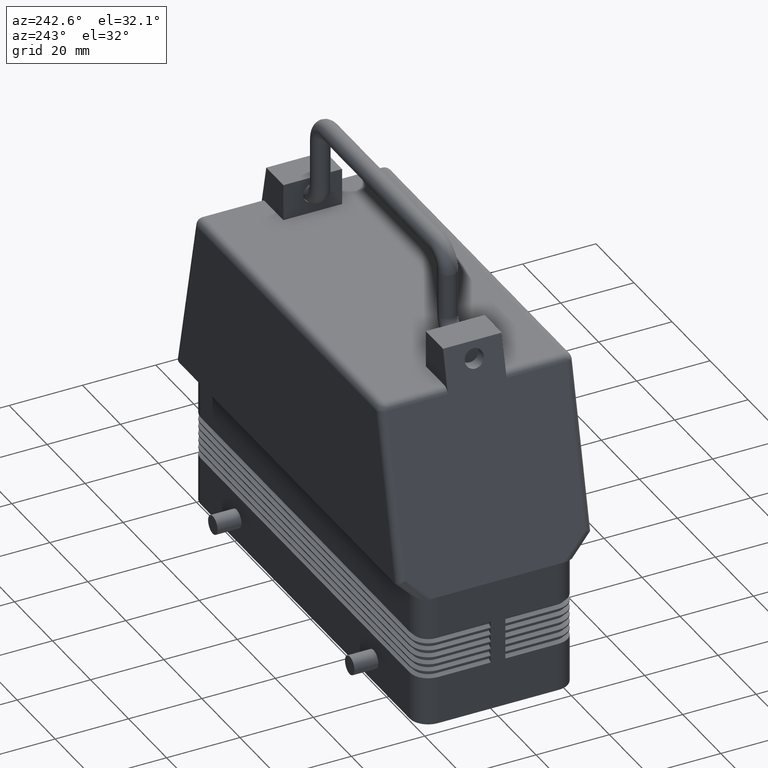
[diagram: clean part render]
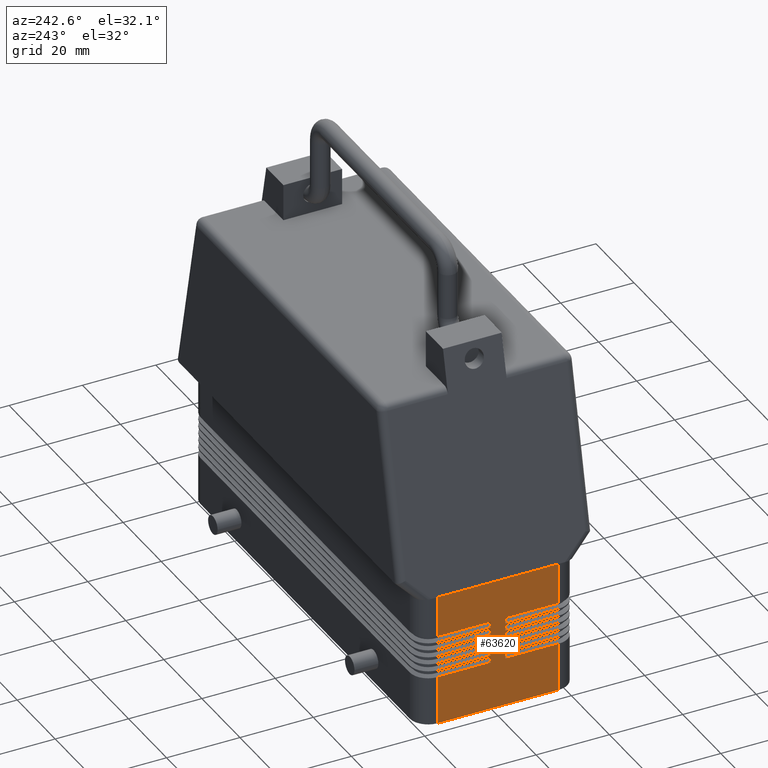
[diagram: same view with one face highlighted and labeled with its STEP entity id]
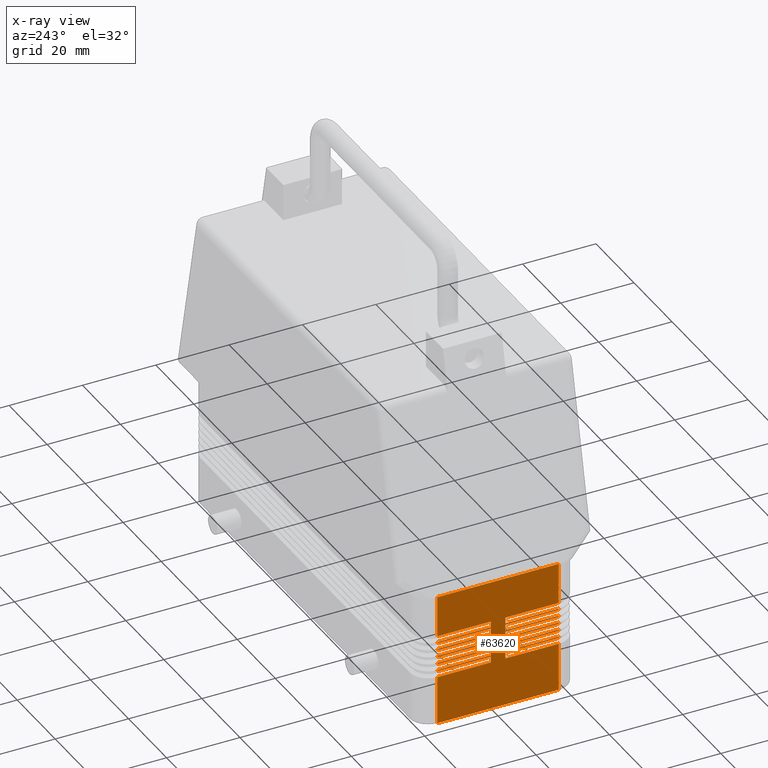
[diagram: x-ray of the same camera — body ghosted, the highlighted face saturated]
A machine part, auxiliary view. The second image highlights one B-rep face of the part: STEP entity #63620.
The next image is the same camera in x-ray: the body ghosted, the highlighted face saturated — about 0% of this face is hidden behind the body in this view.
In plain terms, the highlighted planar face has unit normal (-1, 0, 0).
Its self-contained STEP definition (entity closure, byte-faithful):
#5150=CARTESIAN_POINT('',(-60.,16.5,2.220446E-14));
#5160=DIRECTION('',(0.,0.,1.));
#5170=VECTOR('',#5160,13.1726497308104);
#5180=LINE('',#5150,#5170);
#5190=CARTESIAN_POINT('',(-60.,16.5,2.220446E-14));
#5200=VERTEX_POINT('',#5190);
#5210=CARTESIAN_POINT('',(-60.,16.5,13.1726497308104));
#5220=VERTEX_POINT('',#5210);
#5230=EDGE_CURVE('',#5200,#5220,#5180,.T.);
#22430=CARTESIAN_POINT('',(-60.,16.5,14.8273502691896));
#22440=DIRECTION('',(0.,0.,1.));
#22450=VECTOR('',#22440,0.345299461620751);
#22460=LINE('',#22430,#22450);
#22470=CARTESIAN_POINT('',(-60.,16.5,14.8273502691896));
#22480=VERTEX_POINT('',#22470);
#22490=CARTESIAN_POINT('',(-60.,16.5,15.1726497308104));
#22500=VERTEX_POINT('',#22490);
#22510=EDGE_CURVE('',#22480,#22500,#22460,.T.);
#23410=CARTESIAN_POINT('',(-60.,16.5,16.8273502691896));
#23420=DIRECTION('',(0.,0.,1.));
#23430=VECTOR('',#23420,0.345299461620755);
#23440=LINE('',#23410,#23430);
#23450=CARTESIAN_POINT('',(-60.,16.5,16.8273502691896));
#23460=VERTEX_POINT('',#23450);
#23470=CARTESIAN_POINT('',(-60.,16.5,17.1726497308104));
#23480=VERTEX_POINT('',#23470);
#23490=EDGE_CURVE('',#23460,#23480,#23440,.T.);
#24390=CARTESIAN_POINT('',(-60.,16.5,18.8273502691896));
#24400=DIRECTION('',(0.,0.,1.));
#24410=VECTOR('',#24400,0.345299461620755);
#24420=LINE('',#24390,#24410);
#24430=CARTESIAN_POINT('',(-60.,16.5,18.8273502691896));
#24440=VERTEX_POINT('',#24430);
#24450=CARTESIAN_POINT('',(-60.,16.5,19.1726497308104));
#24460=VERTEX_POINT('',#24450);
#24470=EDGE_CURVE('',#24440,#24460,#24420,.T.);
#25370=CARTESIAN_POINT('',(-60.,16.5,20.8273502691896));
#25380=DIRECTION('',(0.,0.,1.));
#25390=VECTOR('',#25380,0.345299461620751);
#25400=LINE('',#25370,#25390);
#25410=CARTESIAN_POINT('',(-60.,16.5,20.8273502691896));
#25420=VERTEX_POINT('',#25410);
#25430=CARTESIAN_POINT('',(-60.,16.5,21.1726497308104));
#25440=VERTEX_POINT('',#25430);
#25450=EDGE_CURVE('',#25420,#25440,#25400,.T.);
#26350=CARTESIAN_POINT('',(-60.,16.5,22.8273502691896));
#26360=DIRECTION('',(0.,0.,1.));
#26370=VECTOR('',#26360,0.345299461620755);
#26380=LINE('',#26350,#26370);
#26390=CARTESIAN_POINT('',(-60.,16.5,22.8273502691896));
#26400=VERTEX_POINT('',#26390);
#26410=CARTESIAN_POINT('',(-60.,16.5,23.1726497308104));
#26420=VERTEX_POINT('',#26410);
#26430=EDGE_CURVE('',#26400,#26420,#26380,.T.);
#27330=CARTESIAN_POINT('',(-60.,16.5,24.8273502691896));
#27340=DIRECTION('',(0.,0.,1.));
#27350=VECTOR('',#27340,11.1726497308104);
#27360=LINE('',#27330,#27350);
#27370=CARTESIAN_POINT('',(-60.,16.5,24.8273502691896));
#27380=VERTEX_POINT('',#27370);
#27390=CARTESIAN_POINT('',(-60.,16.5,36.));
#27400=VERTEX_POINT('',#27390);
#27410=EDGE_CURVE('',#27380,#27400,#27360,.T.);
#28310=CARTESIAN_POINT('',(-60.,-16.5,13.1726497308104));
#28320=DIRECTION('',(0.,0.,-1.));
#28330=VECTOR('',#28320,13.1726497308104);
#28340=LINE('',#28310,#28330);
#28350=CARTESIAN_POINT('',(-60.,-16.5,13.1726497308104));
#28360=VERTEX_POINT('',#28350);
#28370=CARTESIAN_POINT('',(-60.,-16.5,2.220446E-14));
#28380=VERTEX_POINT('',#28370);
#28390=EDGE_CURVE('',#28360,#28380,#28340,.T.);
#29290=CARTESIAN_POINT('',(-60.,-16.5,15.1726497308104));
#29300=DIRECTION('',(0.,0.,-1.));
#29310=VECTOR('',#29300,0.345299461620753);
#29320=LINE('',#29290,#29310);
#29330=CARTESIAN_POINT('',(-60.,-16.5,15.1726497308104));
#29340=VERTEX_POINT('',#29330);
#29350=CARTESIAN_POINT('',(-60.,-16.5,14.8273502691896));
#29360=VERTEX_POINT('',#29350);
#29370=EDGE_CURVE('',#29340,#29360,#29320,.T.);
#30270=CARTESIAN_POINT('',(-60.,-16.5,17.1726497308104));
#30280=DIRECTION('',(0.,0.,-1.));
#30290=VECTOR('',#30280,0.345299461620765);
#30300=LINE('',#30270,#30290);
#30310=CARTESIAN_POINT('',(-60.,-16.5,17.1726497308104));
#30320=VERTEX_POINT('',#30310);
#30330=CARTESIAN_POINT('',(-60.,-16.5,16.8273502691896));
#30340=VERTEX_POINT('',#30330);
#30350=EDGE_CURVE('',#30320,#30340,#30300,.T.);
#31250=CARTESIAN_POINT('',(-60.,-16.5,19.1726497308104));
#31260=DIRECTION('',(0.,0.,-1.));
#31270=VECTOR('',#31260,0.345299461620765);
#31280=LINE('',#31250,#31270);
#31290=CARTESIAN_POINT('',(-60.,-16.5,19.1726497308104));
#31300=VERTEX_POINT('',#31290);
#31310=CARTESIAN_POINT('',(-60.,-16.5,18.8273502691896));
#31320=VERTEX_POINT('',#31310);
#31330=EDGE_CURVE('',#31300,#31320,#31280,.T.);
#32230=CARTESIAN_POINT('',(-60.,-16.5,21.1726497308104));
#32240=DIRECTION('',(0.,0.,-1.));
#32250=VECTOR('',#32240,0.345299461620758);
#32260=LINE('',#32230,#32250);
#32270=CARTESIAN_POINT('',(-60.,-16.5,21.1726497308104));
#32280=VERTEX_POINT('',#32270);
#32290=CARTESIAN_POINT('',(-60.,-16.5,20.8273502691896));
#32300=VERTEX_POINT('',#32290);
#32310=EDGE_CURVE('',#32280,#32300,#32260,.T.);
#33210=CARTESIAN_POINT('',(-60.,-16.5,23.1726497308104));
#33220=DIRECTION('',(0.,0.,-1.));
#33230=VECTOR('',#33220,0.345299461620758);
#33240=LINE('',#33210,#33230);
#33250=CARTESIAN_POINT('',(-60.,-16.5,23.1726497308104));
#33260=VERTEX_POINT('',#33250);
#33270=CARTESIAN_POINT('',(-60.,-16.5,22.8273502691896));
#33280=VERTEX_POINT('',#33270);
#33290=EDGE_CURVE('',#33260,#33280,#33240,.T.);
#33700=CARTESIAN_POINT('',(-60.,-16.5,36.));
#33710=DIRECTION('',(0.,0.,-1.));
#33720=VECTOR('',#33710,11.1726497308104);
#33730=LINE('',#33700,#33720);
#33740=CARTESIAN_POINT('',(-60.,-16.5,36.));
#33750=VERTEX_POINT('',#33740);
#33760=CARTESIAN_POINT('',(-60.,-16.5,24.8273502691896));
#33770=VERTEX_POINT('',#33760);
#33780=EDGE_CURVE('',#33750,#33770,#33730,.T.);
#55600=CARTESIAN_POINT('',(-60.,-2.,23.1726497308104));
#55610=VERTEX_POINT('',#55600);
#55710=CARTESIAN_POINT('',(-60.,-16.5,23.1726497308104));
#55720=DIRECTION('',(0.,1.,0.));
#55730=VECTOR('',#55720,14.5);
#55740=LINE('',#55710,#55730);
#55750=EDGE_CURVE('',#33260,#55610,#55740,.T.);
#55960=CARTESIAN_POINT('',(-60.,-2.,24.8273502691896));
#55970=VERTEX_POINT('',#55960);
#56090=CARTESIAN_POINT('',(-60.,-2.,23.1726497308104));
#56100=DIRECTION('',(0.,0.,1.));
#56110=VECTOR('',#56100,1.65470053837924);
#56120=LINE('',#56090,#56110);
#56130=EDGE_CURVE('',#55610,#55970,#56120,.T.);
#56450=CARTESIAN_POINT('',(-60.,-2.,24.8273502691896));
#56460=DIRECTION('',(0.,-1.,0.));
#56470=VECTOR('',#56460,14.5);
#56480=LINE('',#56450,#56470);
#56490=EDGE_CURVE('',#55970,#33770,#56480,.T.);
#60840=CARTESIAN_POINT('',(-60.,0.,36.));
#60850=DIRECTION('',(-1.,0.,0.));
#60860=DIRECTION('',(0.,0.,1.));
#60870=AXIS2_PLACEMENT_3D('',#60840,#60850,#60860);
#60880=PLANE('',#60870);
#60890=ORIENTED_EDGE('',*,*,#33290,.F.);
#60900=CARTESIAN_POINT('',(-60.,-2.,22.8273502691896));
#60910=DIRECTION('',(0.,-1.,0.));
#60920=VECTOR('',#60910,14.5);
#60930=LINE('',#60900,#60920);
#60940=CARTESIAN_POINT('',(-60.,-2.,22.8273502691896));
#60950=VERTEX_POINT('',#60940);
#60960=EDGE_CURVE('',#60950,#33280,#60930,.T.);
#60970=ORIENTED_EDGE('',*,*,#60960,.T.);
#60980=CARTESIAN_POINT('',(-60.,-2.,21.1726497308104));
#60990=DIRECTION('',(0.,0.,1.));
#61000=VECTOR('',#60990,1.65470053837924);
#61010=LINE('',#60980,#61000);
#61020=CARTESIAN_POINT('',(-60.,-2.,21.1726497308104));
#61030=VERTEX_POINT('',#61020);
#61040=EDGE_CURVE('',#61030,#60950,#61010,.T.);
#61050=ORIENTED_EDGE('',*,*,#61040,.T.);
#61060=CARTESIAN_POINT('',(-60.,-16.5,21.1726497308104));
#61070=DIRECTION('',(0.,1.,0.));
#61080=VECTOR('',#61070,14.5);
#61090=LINE('',#61060,#61080);
#61100=EDGE_CURVE('',#32280,#61030,#61090,.T.);
#61110=ORIENTED_EDGE('',*,*,#61100,.T.);
#61120=ORIENTED_EDGE('',*,*,#32310,.F.);
#61130=CARTESIAN_POINT('',(-60.,-2.,20.8273502691896));
#61140=DIRECTION('',(0.,-1.,0.));
#61150=VECTOR('',#61140,14.5);
#61160=LINE('',#61130,#61150);
#61170=CARTESIAN_POINT('',(-60.,-2.,20.8273502691896));
#61180=VERTEX_POINT('',#61170);
#61190=EDGE_CURVE('',#61180,#32300,#61160,.T.);
#61200=ORIENTED_EDGE('',*,*,#61190,.T.);
#61210=CARTESIAN_POINT('',(-60.,-2.,19.1726497308104));
#61220=DIRECTION('',(0.,0.,1.));
#61230=VECTOR('',#61220,1.65470053837924);
#61240=LINE('',#61210,#61230);
#61250=CARTESIAN_POINT('',(-60.,-2.,19.1726497308104));
#61260=VERTEX_POINT('',#61250);
#61270=EDGE_CURVE('',#61260,#61180,#61240,.T.);
#61280=ORIENTED_EDGE('',*,*,#61270,.T.);
#61290=CARTESIAN_POINT('',(-60.,-16.5,19.1726497308104));
#61300=DIRECTION('',(0.,1.,0.));
#61310=VECTOR('',#61300,14.5);
#61320=LINE('',#61290,#61310);
#61330=EDGE_CURVE('',#31300,#61260,#61320,.T.);
#61340=ORIENTED_EDGE('',*,*,#61330,.T.);
#61350=ORIENTED_EDGE('',*,*,#31330,.F.);
#61360=CARTESIAN_POINT('',(-60.,-2.,18.8273502691896));
#61370=DIRECTION('',(0.,-1.,0.));
#61380=VECTOR('',#61370,14.5);
#61390=LINE('',#61360,#61380);
#61400=CARTESIAN_POINT('',(-60.,-2.,18.8273502691896));
#61410=VERTEX_POINT('',#61400);
#61420=EDGE_CURVE('',#61410,#31320,#61390,.T.);
#61430=ORIENTED_EDGE('',*,*,#61420,.T.);
#61440=CARTESIAN_POINT('',(-60.,-2.,17.1726497308104));
#61450=DIRECTION('',(0.,0.,1.));
#61460=VECTOR('',#61450,1.65470053837924);
#61470=LINE('',#61440,#61460);
#61480=CARTESIAN_POINT('',(-60.,-2.,17.1726497308104));
#61490=VERTEX_POINT('',#61480);
#61500=EDGE_CURVE('',#61490,#61410,#61470,.T.);
#61510=ORIENTED_EDGE('',*,*,#61500,.T.);
#61520=CARTESIAN_POINT('',(-60.,-16.5,17.1726497308104));
#61530=DIRECTION('',(0.,1.,0.));
#61540=VECTOR('',#61530,14.5);
#61550=LINE('',#61520,#61540);
#61560=EDGE_CURVE('',#30320,#61490,#61550,.T.);
#61570=ORIENTED_EDGE('',*,*,#61560,.T.);
#61580=ORIENTED_EDGE('',*,*,#30350,.F.);
#61590=CARTESIAN_POINT('',(-60.,-2.,16.8273502691896));
#61600=DIRECTION('',(0.,-1.,0.));
#61610=VECTOR('',#61600,14.5);
#61620=LINE('',#61590,#61610);
#61630=CARTESIAN_POINT('',(-60.,-2.,16.8273502691896));
#61640=VERTEX_POINT('',#61630);
#61650=EDGE_CURVE('',#61640,#30340,#61620,.T.);
#61660=ORIENTED_EDGE('',*,*,#61650,.T.);
#61670=CARTESIAN_POINT('',(-60.,-2.,15.1726497308104));
#61680=DIRECTION('',(0.,0.,1.));
#61690=VECTOR('',#61680,1.65470053837924);
#61700=LINE('',#61670,#61690);
#61710=CARTESIAN_POINT('',(-60.,-2.,15.1726497308104));
#61720=VERTEX_POINT('',#61710);
#61730=EDGE_CURVE('',#61720,#61640,#61700,.T.);
#61740=ORIENTED_EDGE('',*,*,#61730,.T.);
#61750=CARTESIAN_POINT('',(-60.,-16.5,15.1726497308104));
#61760=DIRECTION('',(0.,1.,0.));
#61770=VECTOR('',#61760,14.5);
#61780=LINE('',#61750,#61770);
#61790=EDGE_CURVE('',#29340,#61720,#61780,.T.);
#61800=ORIENTED_EDGE('',*,*,#61790,.T.);
#61810=ORIENTED_EDGE('',*,*,#29370,.F.);
#61820=CARTESIAN_POINT('',(-60.,-2.,14.8273502691896));
#61830=DIRECTION('',(0.,-1.,0.));
#61840=VECTOR('',#61830,14.5);
#61850=LINE('',#61820,#61840);
#61860=CARTESIAN_POINT('',(-60.,-2.,14.8273502691896));
#61870=VERTEX_POINT('',#61860);
#61880=EDGE_CURVE('',#61870,#29360,#61850,.T.);
#61890=ORIENTED_EDGE('',*,*,#61880,.T.);
#61900=CARTESIAN_POINT('',(-60.,-2.,13.1726497308104));
#61910=DIRECTION('',(0.,0.,1.));
#61920=VECTOR('',#61910,1.65470053837924);
#61930=LINE('',#61900,#61920);
#61940=CARTESIAN_POINT('',(-60.,-2.,13.1726497308104));
#61950=VERTEX_POINT('',#61940);
#61960=EDGE_CURVE('',#61950,#61870,#61930,.T.);
#61970=ORIENTED_EDGE('',*,*,#61960,.T.);
#61980=CARTESIAN_POINT('',(-60.,-16.5,13.1726497308104));
#61990=DIRECTION('',(0.,1.,0.));
#62000=VECTOR('',#61990,14.5);
#62010=LINE('',#61980,#62000);
#62020=EDGE_CURVE('',#28360,#61950,#62010,.T.);
#62030=ORIENTED_EDGE('',*,*,#62020,.T.);
#62040=ORIENTED_EDGE('',*,*,#28390,.F.);
#62050=CARTESIAN_POINT('',(-60.,-16.5,2.220446E-14));
#62060=DIRECTION('',(0.,1.,0.));
#62070=VECTOR('',#62060,33.);
#62080=LINE('',#62050,#62070);
#62090=EDGE_CURVE('',#28380,#5200,#62080,.T.);
#62100=ORIENTED_EDGE('',*,*,#62090,.F.);
#62110=ORIENTED_EDGE('',*,*,#5230,.F.);
#62120=CARTESIAN_POINT('',(-60.,2.,13.1726497308104));
#62130=DIRECTION('',(0.,1.,0.));
#62140=VECTOR('',#62130,14.5);
#62150=LINE('',#62120,#62140);
#62160=CARTESIAN_POINT('',(-60.,2.,13.1726497308104));
#62170=VERTEX_POINT('',#62160);
#62180=EDGE_CURVE('',#62170,#5220,#62150,.T.);
#62190=ORIENTED_EDGE('',*,*,#62180,.T.);
#62200=CARTESIAN_POINT('',(-60.,2.,14.8273502691896));
#62210=DIRECTION('',(0.,0.,-1.));
#62220=VECTOR('',#62210,1.65470053837924);
#62230=LINE('',#62200,#62220);
#62240=CARTESIAN_POINT('',(-60.,2.,14.8273502691896));
#62250=VERTEX_POINT('',#62240);
#62260=EDGE_CURVE('',#62250,#62170,#62230,.T.);
#62270=ORIENTED_EDGE('',*,*,#62260,.T.);
#62280=CARTESIAN_POINT('',(-60.,16.5,14.8273502691896));
#62290=DIRECTION('',(0.,-1.,0.));
#62300=VECTOR('',#62290,14.5);
#62310=LINE('',#62280,#62300);
#62320=EDGE_CURVE('',#22480,#62250,#62310,.T.);
#62330=ORIENTED_EDGE('',*,*,#62320,.T.);
#62340=ORIENTED_EDGE('',*,*,#22510,.F.);
#62350=CARTESIAN_POINT('',(-60.,2.,15.1726497308104));
#62360=DIRECTION('',(0.,1.,0.));
#62370=VECTOR('',#62360,14.5);
#62380=LINE('',#62350,#62370);
#62390=CARTESIAN_POINT('',(-60.,2.,15.1726497308104));
#62400=VERTEX_POINT('',#62390);
#62410=EDGE_CURVE('',#62400,#22500,#62380,.T.);
#62420=ORIENTED_EDGE('',*,*,#62410,.T.);
#62430=CARTESIAN_POINT('',(-60.,2.,16.8273502691896));
#62440=DIRECTION('',(0.,0.,-1.));
#62450=VECTOR('',#62440,1.65470053837924);
#62460=LINE('',#62430,#62450);
#62470=CARTESIAN_POINT('',(-60.,2.,16.8273502691896));
#62480=VERTEX_POINT('',#62470);
#62490=EDGE_CURVE('',#62480,#62400,#62460,.T.);
#62500=ORIENTED_EDGE('',*,*,#62490,.T.);
#62510=CARTESIAN_POINT('',(-60.,16.5,16.8273502691896));
#62520=DIRECTION('',(0.,-1.,0.));
#62530=VECTOR('',#62520,14.5);
#62540=LINE('',#62510,#62530);
#62550=EDGE_CURVE('',#23460,#62480,#62540,.T.);
#62560=ORIENTED_EDGE('',*,*,#62550,.T.);
#62570=ORIENTED_EDGE('',*,*,#23490,.F.);
#62580=CARTESIAN_POINT('',(-60.,2.,17.1726497308104));
#62590=DIRECTION('',(0.,1.,0.));
#62600=VECTOR('',#62590,14.5);
#62610=LINE('',#62580,#62600);
#62620=CARTESIAN_POINT('',(-60.,2.,17.1726497308104));
#62630=VERTEX_POINT('',#62620);
#62640=EDGE_CURVE('',#62630,#23480,#62610,.T.);
#62650=ORIENTED_EDGE('',*,*,#62640,.T.);
#62660=CARTESIAN_POINT('',(-60.,2.,18.8273502691896));
#62670=DIRECTION('',(0.,0.,-1.));
#62680=VECTOR('',#62670,1.65470053837924);
#62690=LINE('',#62660,#62680);
#62700=CARTESIAN_POINT('',(-60.,2.,18.8273502691896));
#62710=VERTEX_POINT('',#62700);
#62720=EDGE_CURVE('',#62710,#62630,#62690,.T.);
#62730=ORIENTED_EDGE('',*,*,#62720,.T.);
#62740=CARTESIAN_POINT('',(-60.,16.5,18.8273502691896));
#62750=DIRECTION('',(0.,-1.,0.));
#62760=VECTOR('',#62750,14.5);
#62770=LINE('',#62740,#62760);
#62780=EDGE_CURVE('',#24440,#62710,#62770,.T.);
#62790=ORIENTED_EDGE('',*,*,#62780,.T.);
#62800=ORIENTED_EDGE('',*,*,#24470,.F.);
#62810=CARTESIAN_POINT('',(-60.,2.,19.1726497308104));
#62820=DIRECTION('',(0.,1.,0.));
#62830=VECTOR('',#62820,14.5);
#62840=LINE('',#62810,#62830);
#62850=CARTESIAN_POINT('',(-60.,2.,19.1726497308104));
#62860=VERTEX_POINT('',#62850);
#62870=EDGE_CURVE('',#62860,#24460,#62840,.T.);
#62880=ORIENTED_EDGE('',*,*,#62870,.T.);
#62890=CARTESIAN_POINT('',(-60.,2.,20.8273502691896));
#62900=DIRECTION('',(0.,0.,-1.));
#62910=VECTOR('',#62900,1.65470053837924);
#62920=LINE('',#62890,#62910);
#62930=CARTESIAN_POINT('',(-60.,2.,20.8273502691896));
#62940=VERTEX_POINT('',#62930);
#62950=EDGE_CURVE('',#62940,#62860,#62920,.T.);
#62960=ORIENTED_EDGE('',*,*,#62950,.T.);
#62970=CARTESIAN_POINT('',(-60.,16.5,20.8273502691896));
#62980=DIRECTION('',(0.,-1.,0.));
#62990=VECTOR('',#62980,14.5);
#63000=LINE('',#62970,#62990);
#63010=EDGE_CURVE('',#25420,#62940,#63000,.T.);
#63020=ORIENTED_EDGE('',*,*,#63010,.T.);
#63030=ORIENTED_EDGE('',*,*,#25450,.F.);
#63040=CARTESIAN_POINT('',(-60.,2.,21.1726497308104));
#63050=DIRECTION('',(0.,1.,0.));
#63060=VECTOR('',#63050,14.5);
#63070=LINE('',#63040,#63060);
#63080=CARTESIAN_POINT('',(-60.,2.,21.1726497308104));
#63090=VERTEX_POINT('',#63080);
#63100=EDGE_CURVE('',#63090,#25440,#63070,.T.);
#63110=ORIENTED_EDGE('',*,*,#63100,.T.);
#63120=CARTESIAN_POINT('',(-60.,2.,22.8273502691896));
#63130=DIRECTION('',(0.,0.,-1.));
#63140=VECTOR('',#63130,1.65470053837924);
#63150=LINE('',#63120,#63140);
#63160=CARTESIAN_POINT('',(-60.,2.,22.8273502691896));
#63170=VERTEX_POINT('',#63160);
#63180=EDGE_CURVE('',#63170,#63090,#63150,.T.);
#63190=ORIENTED_EDGE('',*,*,#63180,.T.);
#63200=CARTESIAN_POINT('',(-60.,16.5,22.8273502691896));
#63210=DIRECTION('',(0.,-1.,0.));
#63220=VECTOR('',#63210,14.5);
#63230=LINE('',#63200,#63220);
#63240=EDGE_CURVE('',#26400,#63170,#63230,.T.);
#63250=ORIENTED_EDGE('',*,*,#63240,.T.);
#63260=ORIENTED_EDGE('',*,*,#26430,.F.);
#63270=CARTESIAN_POINT('',(-60.,2.,23.1726497308104));
#63280=DIRECTION('',(0.,1.,0.));
#63290=VECTOR('',#63280,14.5);
#63300=LINE('',#63270,#63290);
#63310=CARTESIAN_POINT('',(-60.,2.,23.1726497308104));
#63320=VERTEX_POINT('',#63310);
#63330=EDGE_CURVE('',#63320,#26420,#63300,.T.);
#63340=ORIENTED_EDGE('',*,*,#63330,.T.);
#63350=CARTESIAN_POINT('',(-60.,2.,24.8273502691896));
#63360=DIRECTION('',(0.,0.,-1.));
#63370=VECTOR('',#63360,1.65470053837924);
#63380=LINE('',#63350,#63370);
#63390=CARTESIAN_POINT('',(-60.,2.,24.8273502691896));
#63400=VERTEX_POINT('',#63390);
#63410=EDGE_CURVE('',#63400,#63320,#63380,.T.);
#63420=ORIENTED_EDGE('',*,*,#63410,.T.);
#63430=CARTESIAN_POINT('',(-60.,16.5,24.8273502691896));
#63440=DIRECTION('',(0.,-1.,0.));
#63450=VECTOR('',#63440,14.5);
#63460=LINE('',#63430,#63450);
#63470=EDGE_CURVE('',#27380,#63400,#63460,.T.);
#63480=ORIENTED_EDGE('',*,*,#63470,.T.);
#63490=ORIENTED_EDGE('',*,*,#27410,.F.);
#63500=CARTESIAN_POINT('',(-60.,-16.5,36.));
#63510=DIRECTION('',(0.,1.,0.));
#63520=VECTOR('',#63510,33.);
#63530=LINE('',#63500,#63520);
#63540=EDGE_CURVE('',#33750,#27400,#63530,.T.);
#63550=ORIENTED_EDGE('',*,*,#63540,.T.);
#63560=ORIENTED_EDGE('',*,*,#33780,.F.);
#63570=ORIENTED_EDGE('',*,*,#56490,.T.);
#63580=ORIENTED_EDGE('',*,*,#56130,.T.);
#63590=ORIENTED_EDGE('',*,*,#55750,.T.);
#63600=EDGE_LOOP('',(#63590,#63580,#63570,#63560,#63550,#63490,#63480,
#63420,#63340,#63260,#63250,#63190,#63110,#63030,#63020,#62960,#62880,
#62800,#62790,#62730,#62650,#62570,#62560,#62500,#62420,#62340,#62330,
#62270,#62190,#62110,#62100,#62040,#62030,#61970,#61890,#61810,#61800,
#61740,#61660,#61580,#61570,#61510,#61430,#61350,#61340,#61280,#61200,
#61120,#61110,#61050,#60970,#60890));
#63610=FACE_OUTER_BOUND('',#63600,.T.);
#63620=ADVANCED_FACE('',(#63610),#60880,.T.);